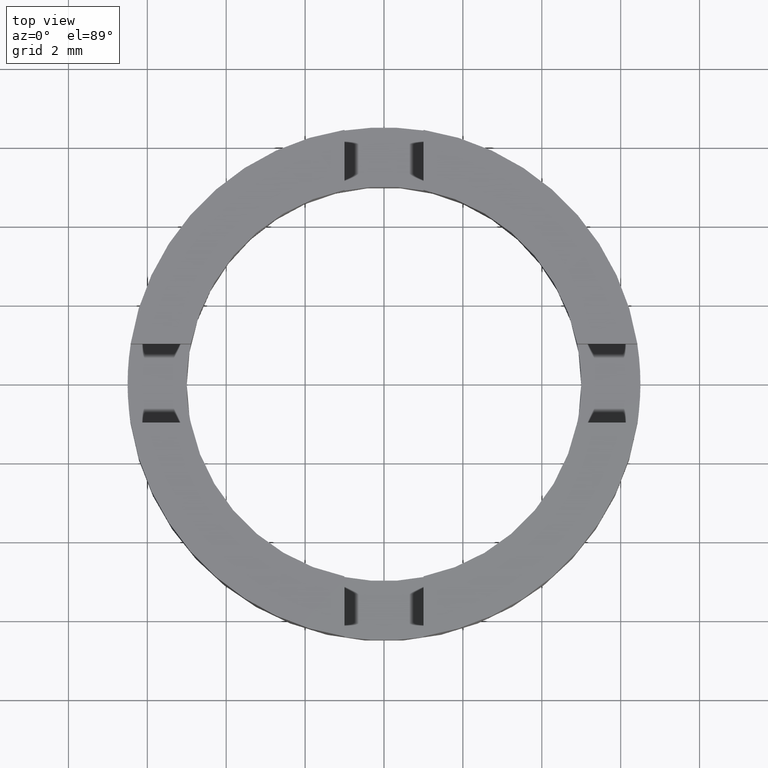
[diagram: clean part render]
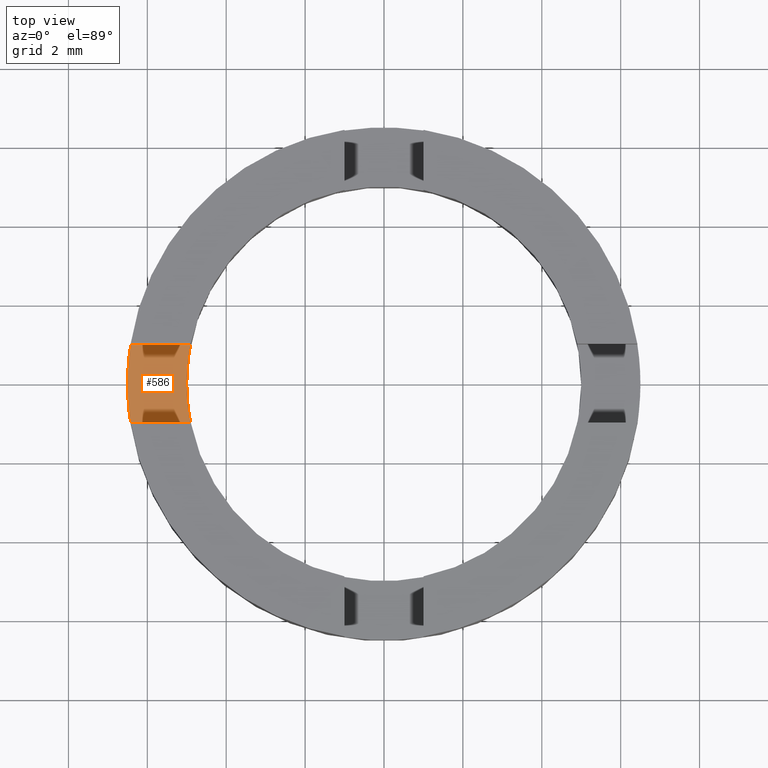
[diagram: same view with one face highlighted and labeled with its STEP entity id]
A machine part, top view. The second image highlights one B-rep face of the part: STEP entity #586.
In plain terms, the highlighted planar face has unit normal (-0, 0, 1).
Its self-contained STEP definition (entity closure, byte-faithful):
#11 = AXIS2_PLACEMENT_3D ( 'NONE', #739, #507, #759 ) ;
#25 = CARTESIAN_POINT ( 'NONE',  ( -3.736327486719281491E-15, -1.000000000000001110, 1.500000000000000000 ) ) ;
#26 = DIRECTION ( 'NONE',  ( -0.000000000000000000, 0.000000000000000000, 1.000000000000000000 ) ) ;
#35 = CARTESIAN_POINT ( 'NONE',  ( -4.898979485566353098, 1.000000000000017097, 1.500000000000000000 ) ) ;
#51 = CIRCLE ( 'NONE', #525, 5.000000000000000000 ) ;
#79 = CARTESIAN_POINT ( 'NONE',  ( 0.000000000000000000, 0.000000000000000000, 1.500000000000000000 ) ) ;
#99 = ORIENTED_EDGE ( 'NONE', *, *, #715, .T. ) ;
#101 = CIRCLE ( 'NONE', #744, 5.000000000000000000 ) ;
#127 = DIRECTION ( 'NONE',  ( 1.000000000000000000, -3.736327486719276758E-15, 0.000000000000000000 ) ) ;
#128 = CARTESIAN_POINT ( 'NONE',  ( 0.000000000000000000, 0.000000000000000000, 1.500000000000000000 ) ) ;
#149 = ORIENTED_EDGE ( 'NONE', *, *, #560, .F. ) ;
#151 = VERTEX_POINT ( 'NONE', #272 ) ;
#153 = VERTEX_POINT ( 'NONE', #362 ) ;
#170 = DIRECTION ( 'NONE',  ( 1.000000000000000000, 0.000000000000000000, 0.000000000000000000 ) ) ;
#179 = ORIENTED_EDGE ( 'NONE', *, *, #456, .T. ) ;
#180 = CARTESIAN_POINT ( 'NONE',  ( 0.000000000000000000, 0.000000000000000000, 1.500000000000000000 ) ) ;
#186 = DIRECTION ( 'NONE',  ( 1.000000000000000000, 0.000000000000000000, 0.000000000000000000 ) ) ;
#187 = VERTEX_POINT ( 'NONE', #767 ) ;
#201 = DIRECTION ( 'NONE',  ( 1.000000000000000000, -3.736327486719276758E-15, 0.000000000000000000 ) ) ;
#203 = EDGE_CURVE ( 'NONE', #279, #653, #339, .T. ) ;
#225 = DIRECTION ( 'NONE',  ( 0.000000000000000000, -0.000000000000000000, -1.000000000000000000 ) ) ;
#232 = AXIS2_PLACEMENT_3D ( 'NONE', #128, #26, #186 ) ;
#272 = CARTESIAN_POINT ( 'NONE',  ( -6.422616289332562012, 1.000000000000023093, 1.500000000000000000 ) ) ;
#279 = VERTEX_POINT ( 'NONE', #386 ) ;
#293 = CARTESIAN_POINT ( 'NONE',  ( -4.898979485566360204, -0.9999999999999829026, 1.500000000000000000 ) ) ;
#304 = VECTOR ( 'NONE', #201, 1000.000000000000000 ) ;
#339 = LINE ( 'NONE', #25, #600 ) ;
#355 = CIRCLE ( 'NONE', #729, 6.500000000000000888 ) ;
#362 = CARTESIAN_POINT ( 'NONE',  ( -5.000000000000000000, 0.000000000000000000, 1.500000000000000000 ) ) ;
#367 = LINE ( 'NONE', #662, #304 ) ;
#368 = ORIENTED_EDGE ( 'NONE', *, *, #203, .T. ) ;
#386 = CARTESIAN_POINT ( 'NONE',  ( -6.422616289332568229, -0.9999999999999770184, 1.500000000000000000 ) ) ;
#416 = PLANE ( 'NONE',  #11 ) ;
#418 = DIRECTION ( 'NONE',  ( 0.000000000000000000, -0.000000000000000000, -1.000000000000000000 ) ) ;
#432 = DIRECTION ( 'NONE',  ( -0.000000000000000000, 0.000000000000000000, 1.000000000000000000 ) ) ;
#435 = EDGE_LOOP ( 'NONE', ( #149, #618, #99, #368, #649, #179 ) ) ;
#456 = EDGE_CURVE ( 'NONE', #153, #709, #101, .T. ) ;
#479 = CARTESIAN_POINT ( 'NONE',  ( 0.000000000000000000, 0.000000000000000000, 1.500000000000000000 ) ) ;
#507 = DIRECTION ( 'NONE',  ( -0.000000000000000000, 0.000000000000000000, 1.000000000000000000 ) ) ;
#525 = AXIS2_PLACEMENT_3D ( 'NONE', #180, #225, #667 ) ;
#560 = EDGE_CURVE ( 'NONE', #151, #709, #367, .T. ) ;
#565 = CIRCLE ( 'NONE', #232, 6.500000000000000888 ) ;
#586 = ADVANCED_FACE ( 'NONE', ( #592 ), #416, .T. ) ;
#592 = FACE_OUTER_BOUND ( 'NONE', #435, .T. ) ;
#600 = VECTOR ( 'NONE', #127, 1000.000000000000000 ) ;
#618 = ORIENTED_EDGE ( 'NONE', *, *, #685, .T. ) ;
#649 = ORIENTED_EDGE ( 'NONE', *, *, #733, .T. ) ;
#653 = VERTEX_POINT ( 'NONE', #293 ) ;
#662 = CARTESIAN_POINT ( 'NONE',  ( 3.736327486719272814E-15, 0.9999999999999988898, 1.500000000000000000 ) ) ;
#667 = DIRECTION ( 'NONE',  ( 1.000000000000000000, 7.105427357601001859E-15, 0.000000000000000000 ) ) ;
#680 = DIRECTION ( 'NONE',  ( 1.000000000000000000, 0.000000000000000000, 0.000000000000000000 ) ) ;
#685 = EDGE_CURVE ( 'NONE', #151, #187, #565, .T. ) ;
#709 = VERTEX_POINT ( 'NONE', #35 ) ;
#715 = EDGE_CURVE ( 'NONE', #187, #279, #355, .T. ) ;
#729 = AXIS2_PLACEMENT_3D ( 'NONE', #479, #432, #680 ) ;
#733 = EDGE_CURVE ( 'NONE', #653, #153, #51, .T. ) ;
#739 = CARTESIAN_POINT ( 'NONE',  ( 0.000000000000000000, 0.000000000000000000, 1.500000000000000000 ) ) ;
#744 = AXIS2_PLACEMENT_3D ( 'NONE', #79, #418, #170 ) ;
#759 = DIRECTION ( 'NONE',  ( 1.000000000000000000, 0.000000000000000000, 0.000000000000000000 ) ) ;
#767 = CARTESIAN_POINT ( 'NONE',  ( -6.500000000000000888, 0.000000000000000000, 1.500000000000000000 ) ) ;